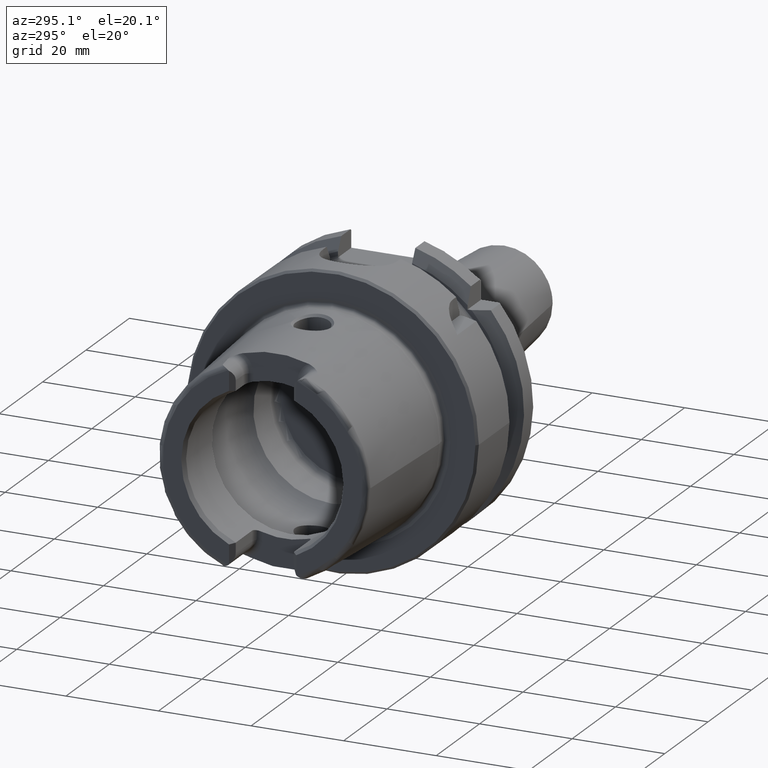
[diagram: clean part render]
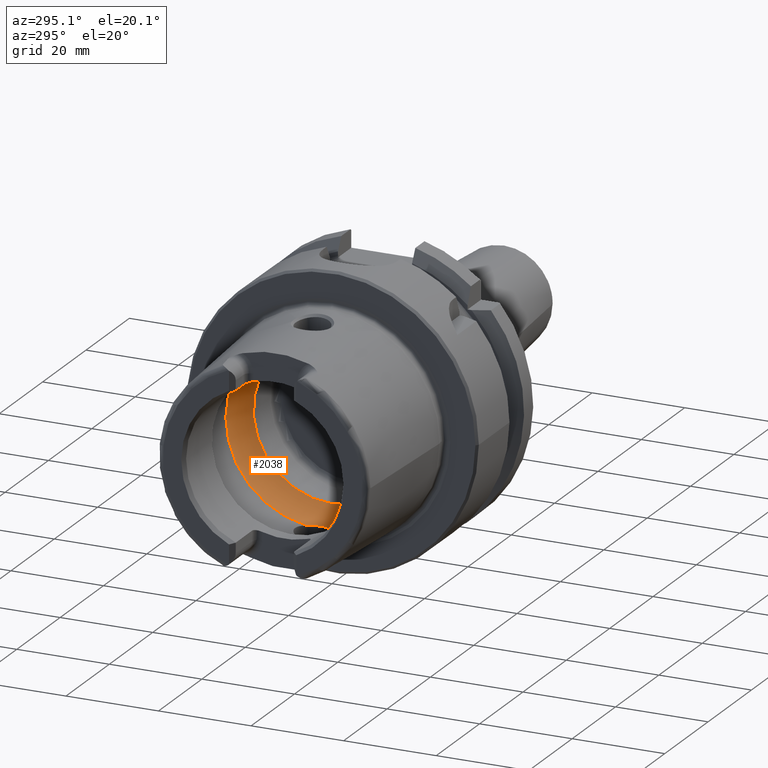
[diagram: same view with one face highlighted and labeled with its STEP entity id]
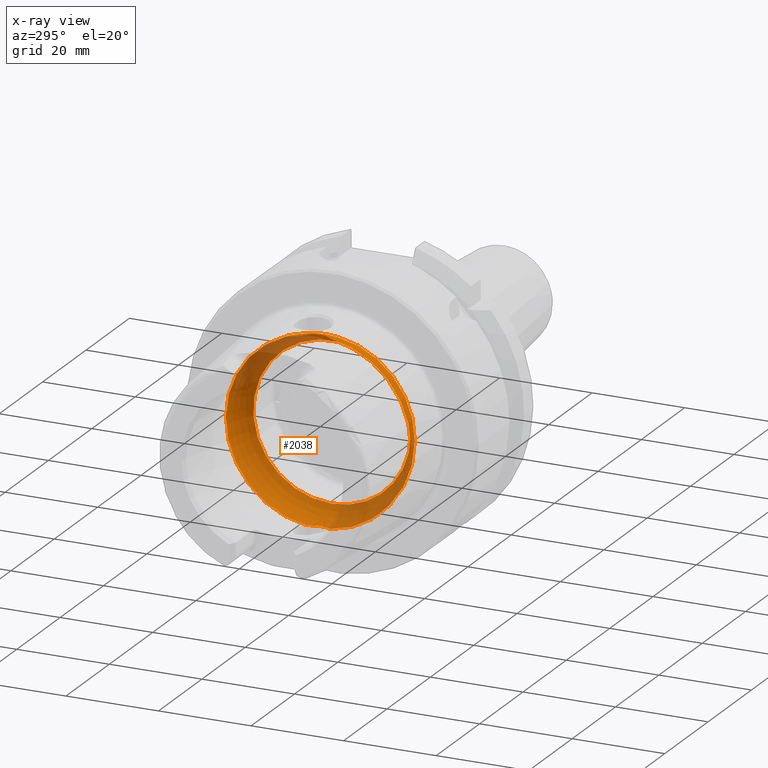
[diagram: x-ray of the same camera — body ghosted, the highlighted face saturated]
A machine part, auxiliary view. The second image highlights one B-rep face of the part: STEP entity #2038.
The next image is the same camera in x-ray: the body ghosted, the highlighted face saturated — about 31% of this face is hidden behind the body in this view.
In plain terms, the highlighted toroidal blend (fillet) surface has major radius 12 mm and minor (blend) radius 8 mm.
Its self-contained STEP definition (entity closure, byte-faithful):
#49=B_SPLINE_CURVE_WITH_KNOTS('',3,(#3590,#3591,#3592,#3593,#3594,#3595,
#3596,#3597,#3598,#3599,#3600,#3601),.UNSPECIFIED.,.F.,.F.,(4,2,2,2,2,4),
(-0.560647090003115,-0.432465132423936,-0.371738630353782,-0.32053783623797,
-0.287500355516274,-0.280385270121909),.UNSPECIFIED.);
#51=B_SPLINE_CURVE_WITH_KNOTS('',3,(#3634,#3635,#3636,#3637,#3638,#3639,
#3640,#3641,#3642,#3643),.UNSPECIFIED.,.F.,.F.,(4,2,2,2,4),(-0.280385270121909,
-0.256917987419631,-0.21744735037608,-0.138661357565599,0.),
 .UNSPECIFIED.);
#54=B_SPLINE_CURVE_WITH_KNOTS('',3,(#3759,#3760,#3761,#3762,#3763,#3764,
#3765,#3766,#3767,#3768,#3769,#3770),.UNSPECIFIED.,.F.,.F.,(4,2,2,2,2,4),
(-0.560647090003256,-0.432465132424011,-0.371738630353825,-0.32053783623799,
-0.287500355516289,-0.280385270121924),.UNSPECIFIED.);
#56=B_SPLINE_CURVE_WITH_KNOTS('',3,(#3803,#3804,#3805,#3806,#3807,#3808,
#3809,#3810,#3811,#3812),.UNSPECIFIED.,.F.,.F.,(4,2,2,2,4),(-0.280385270121924,
-0.256917987419636,-0.217447350376074,-0.138661357565593,0.),
 .UNSPECIFIED.);
#147=TOROIDAL_SURFACE('',#2236,12.,8.);
#250=FACE_OUTER_BOUND('',#379,.T.);
#379=EDGE_LOOP('',(#1540,#1541,#1542,#1543,#1544,#1545,#1546,#1547,#1548,
#1549,#1550));
#730=CIRCLE('',#2231,20.);
#733=CIRCLE('',#2234,20.);
#734=CIRCLE('',#2235,20.);
#735=CIRCLE('',#2237,17.);
#736=CIRCLE('',#2238,17.);
#737=CIRCLE('',#2239,8.);
#905=VERTEX_POINT('',#3587);
#906=VERTEX_POINT('',#3589);
#907=VERTEX_POINT('',#3602);
#910=VERTEX_POINT('',#3757);
#911=VERTEX_POINT('',#3758);
#912=VERTEX_POINT('',#3771);
#913=VERTEX_POINT('',#3815);
#916=VERTEX_POINT('',#3825);
#917=VERTEX_POINT('',#3826);
#1140=EDGE_CURVE('',#906,#905,#49,.T.);
#1142=EDGE_CURVE('',#905,#907,#51,.T.);
#1146=EDGE_CURVE('',#910,#911,#54,.T.);
#1148=EDGE_CURVE('',#911,#912,#56,.T.);
#1150=EDGE_CURVE('',#913,#910,#730,.T.);
#1154=EDGE_CURVE('',#907,#913,#733,.T.);
#1155=EDGE_CURVE('',#912,#906,#734,.T.);
#1156=EDGE_CURVE('',#916,#917,#735,.T.);
#1157=EDGE_CURVE('',#917,#916,#736,.T.);
#1158=EDGE_CURVE('',#917,#905,#737,.T.);
#1540=ORIENTED_EDGE('',*,*,#1156,.F.);
#1541=ORIENTED_EDGE('',*,*,#1157,.F.);
#1542=ORIENTED_EDGE('',*,*,#1158,.T.);
#1543=ORIENTED_EDGE('',*,*,#1142,.T.);
#1544=ORIENTED_EDGE('',*,*,#1154,.T.);
#1545=ORIENTED_EDGE('',*,*,#1150,.T.);
#1546=ORIENTED_EDGE('',*,*,#1146,.T.);
#1547=ORIENTED_EDGE('',*,*,#1148,.T.);
#1548=ORIENTED_EDGE('',*,*,#1155,.T.);
#1549=ORIENTED_EDGE('',*,*,#1140,.T.);
#1550=ORIENTED_EDGE('',*,*,#1158,.F.);
#2038=ADVANCED_FACE('',(#250),#147,.F.);
#2231=AXIS2_PLACEMENT_3D('',#3816,#2621,#2622);
#2234=AXIS2_PLACEMENT_3D('',#3822,#2628,#2629);
#2235=AXIS2_PLACEMENT_3D('',#3823,#2630,#2631);
#2236=AXIS2_PLACEMENT_3D('',#3824,#2632,#2633);
#2237=AXIS2_PLACEMENT_3D('',#3827,#2634,#2635);
#2238=AXIS2_PLACEMENT_3D('',#3828,#2636,#2637);
#2239=AXIS2_PLACEMENT_3D('',#3829,#2638,#2639);
#2621=DIRECTION('center_axis',(-1.,0.,0.));
#2622=DIRECTION('ref_axis',(0.,0.,1.));
#2628=DIRECTION('center_axis',(-1.,0.,0.));
#2629=DIRECTION('ref_axis',(0.,0.,1.));
#2630=DIRECTION('center_axis',(-1.,0.,0.));
#2631=DIRECTION('ref_axis',(0.,0.,1.));
#2632=DIRECTION('center_axis',(-1.,0.,0.));
#2633=DIRECTION('ref_axis',(0.,0.,1.));
#2634=DIRECTION('center_axis',(-1.,0.,0.));
#2635=DIRECTION('ref_axis',(0.,0.,1.));
#2636=DIRECTION('center_axis',(-1.,0.,0.));
#2637=DIRECTION('ref_axis',(0.,0.,1.));
#2638=DIRECTION('center_axis',(0.,1.,-1.22464679914735E-16));
#2639=DIRECTION('ref_axis',(0.,-1.22464679914735E-16,-1.));
#3587=CARTESIAN_POINT('',(-5.25,3.07683831259085E-16,-19.9378825251564));
#3589=CARTESIAN_POINT('',(-6.2449979983984,2.54410376580264,-19.8375284758165));
#3590=CARTESIAN_POINT('Ctrl Pts',(-6.2449979983984,2.54410376580263,-19.8375284758165));
#3591=CARTESIAN_POINT('Ctrl Pts',(-5.9563832733696,2.23156378381208,-19.877610794847));
#3592=CARTESIAN_POINT('Ctrl Pts',(-5.72238184052007,1.87139505615745,-19.9007586679726));
#3593=CARTESIAN_POINT('Ctrl Pts',(-5.47415257397377,1.29299577523533,-19.9221291461079));
#3594=CARTESIAN_POINT('Ctrl Pts',(-5.40951125063364,1.10084807786171,-19.9269865934584));
#3595=CARTESIAN_POINT('Ctrl Pts',(-5.31953029252225,0.738763665580492,-19.9333991732415));
#3596=CARTESIAN_POINT('Ctrl Pts',(-5.28971989928313,0.57048989328573,-19.9353426103026));
#3597=CARTESIAN_POINT('Ctrl Pts',(-5.25970604483208,0.291260075331645,-19.9372753146995));
#3598=CARTESIAN_POINT('Ctrl Pts',(-5.25276504295341,0.181279004510485,-19.9377089305339));
#3599=CARTESIAN_POINT('Ctrl Pts',(-5.25022501552319,0.0474369436209427,
-19.9378684144199));
#3600=CARTESIAN_POINT('Ctrl Pts',(-5.25,0.0237178817918345,-19.9378825251564));
#3601=CARTESIAN_POINT('Ctrl Pts',(-5.25,1.73633857888389E-16,-19.9378825251564));
#3602=CARTESIAN_POINT('',(-6.2449979983984,-2.54410376580264,-19.8375284758165));
#3634=CARTESIAN_POINT('Ctrl Pts',(-5.25,1.73633857888389E-16,-19.9378825251564));
#3635=CARTESIAN_POINT('Ctrl Pts',(-5.25,-0.0782273446147222,-19.9378825251564));
#3636=CARTESIAN_POINT('Ctrl Pts',(-5.25244785081342,-0.15644185230388,-19.9377296492436));
#3637=CARTESIAN_POINT('Ctrl Pts',(-5.26557067654327,-0.365860616871457,
-19.9368989370107));
#3638=CARTESIAN_POINT('Ctrl Pts',(-5.2807081654794,-0.496671474530444,-19.9359382432917));
#3639=CARTESIAN_POINT('Ctrl Pts',(-5.34656166936447,-0.885366242555149,
-19.9315392091305));
#3640=CARTESIAN_POINT('Ctrl Pts',(-5.41752174824152,-1.13897710923821,-19.9266508951874));
#3641=CARTESIAN_POINT('Ctrl Pts',(-5.68473945553282,-1.81246400136134,-19.9044561094296));
#3642=CARTESIAN_POINT('Ctrl Pts',(-5.93280828188796,-2.20603449935731,-19.880884849314));
#3643=CARTESIAN_POINT('Ctrl Pts',(-6.2449979983984,-2.54410376580263,-19.8375284758165));
#3757=CARTESIAN_POINT('',(-6.2449979983984,-2.54410376580264,19.8375284758165));
#3758=CARTESIAN_POINT('',(-5.25,4.81156178856766E-16,19.9378825251564));
#3759=CARTESIAN_POINT('Ctrl Pts',(-6.2449979983984,-2.54410376580264,19.8375284758165));
#3760=CARTESIAN_POINT('Ctrl Pts',(-5.9563832733696,-2.23156378381209,19.877610794847));
#3761=CARTESIAN_POINT('Ctrl Pts',(-5.72238184052007,-1.87139505615746,19.9007586679726));
#3762=CARTESIAN_POINT('Ctrl Pts',(-5.47415257397376,-1.29299577523533,19.9221291461079));
#3763=CARTESIAN_POINT('Ctrl Pts',(-5.40951125063363,-1.10084807786172,19.9269865934584));
#3764=CARTESIAN_POINT('Ctrl Pts',(-5.31953029252225,-0.738763665580501,
19.9333991732415));
#3765=CARTESIAN_POINT('Ctrl Pts',(-5.28971989928313,-0.570489893285745,
19.9353426103026));
#3766=CARTESIAN_POINT('Ctrl Pts',(-5.25970604483207,-0.291260075331669,
19.9372753146995));
#3767=CARTESIAN_POINT('Ctrl Pts',(-5.2527650429534,-0.181279004510531,19.9377089305339));
#3768=CARTESIAN_POINT('Ctrl Pts',(-5.25022501552319,-0.0474369436209401,
19.9378684144199));
#3769=CARTESIAN_POINT('Ctrl Pts',(-5.25,-0.0237178817918311,19.9378825251564));
#3770=CARTESIAN_POINT('Ctrl Pts',(-5.25,5.15920899939407E-16,19.9378825251564));
#3771=CARTESIAN_POINT('',(-6.2449979983984,2.54410376580264,19.8375284758165));
#3803=CARTESIAN_POINT('Ctrl Pts',(-5.25,5.15920899939407E-16,19.9378825251564));
#3804=CARTESIAN_POINT('Ctrl Pts',(-5.25,0.0782273446147462,19.9378825251564));
#3805=CARTESIAN_POINT('Ctrl Pts',(-5.25244785081342,0.156441852303891,19.9377296492436));
#3806=CARTESIAN_POINT('Ctrl Pts',(-5.26557067654326,0.36586061687142,19.9368989370107));
#3807=CARTESIAN_POINT('Ctrl Pts',(-5.28070816547939,0.496671474530425,19.9359382432917));
#3808=CARTESIAN_POINT('Ctrl Pts',(-5.34656166936446,0.885366242555101,19.9315392091305));
#3809=CARTESIAN_POINT('Ctrl Pts',(-5.41752174824151,1.13897710923819,19.9266508951874));
#3810=CARTESIAN_POINT('Ctrl Pts',(-5.68473945553283,1.81246400136138,19.9044561094296));
#3811=CARTESIAN_POINT('Ctrl Pts',(-5.93280828188797,2.20603449935733,19.880884849314));
#3812=CARTESIAN_POINT('Ctrl Pts',(-6.2449979983984,2.54410376580264,19.8375284758165));
#3815=CARTESIAN_POINT('',(-6.2449979983984,-20.,2.44929359829471E-15));
#3816=CARTESIAN_POINT('Origin',(-6.2449979983984,0.,0.));
#3822=CARTESIAN_POINT('Origin',(-6.2449979983984,0.,0.));
#3823=CARTESIAN_POINT('Origin',(-6.2449979983984,0.,0.));
#3824=CARTESIAN_POINT('Origin',(-6.2449979983984,0.,0.));
#3825=CARTESIAN_POINT('',(0.,-17.,2.0818995585505E-15));
#3826=CARTESIAN_POINT('',(0.,-2.0818995585505E-15,-17.));
#3827=CARTESIAN_POINT('Origin',(0.,0.,0.));
#3828=CARTESIAN_POINT('Origin',(0.,0.,0.));
#3829=CARTESIAN_POINT('Origin',(-6.2449979983984,-1.46957615897682E-15,
-12.));